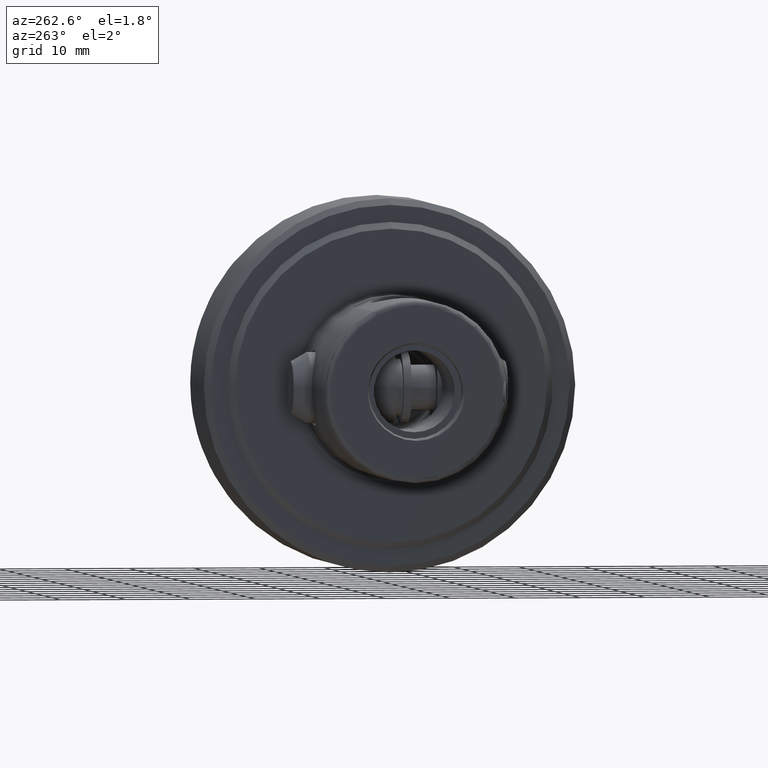
[diagram: clean part render]
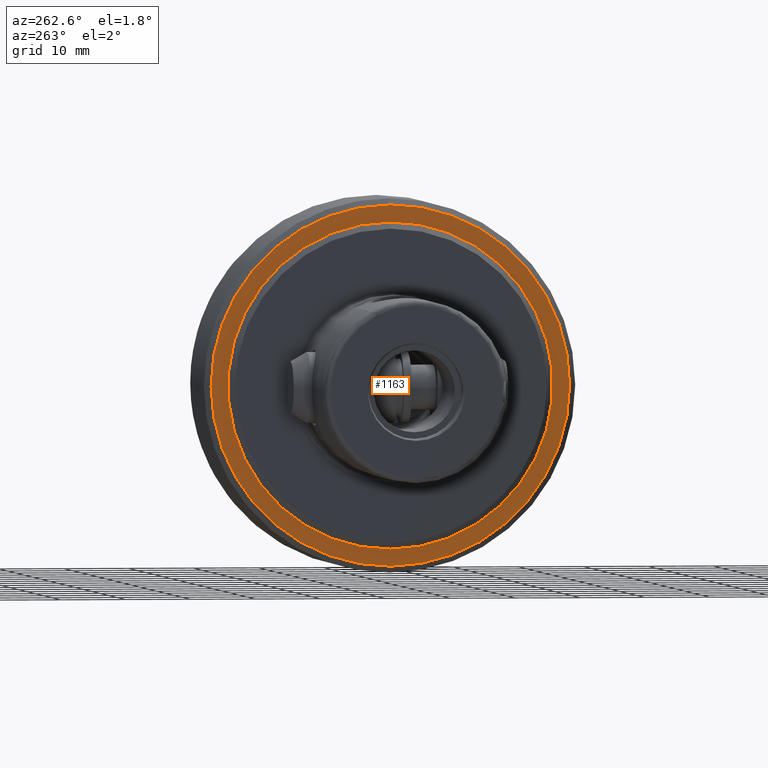
[diagram: same view with one face highlighted and labeled with its STEP entity id]
A machine part, auxiliary view. The second image highlights one B-rep face of the part: STEP entity #1163.
In plain terms, the highlighted planar face has unit normal (1, 0, 0).
Its self-contained STEP definition (entity closure, byte-faithful):
#161 = EDGE_LOOP ( 'NONE', ( #4857, #3424 ) ) ;
#274 = DIRECTION ( 'NONE',  ( 0.0000000000000000000, 0.0000000000000000000, -1.000000000000000000 ) ) ;
#392 = ORIENTED_EDGE ( 'NONE', *, *, #4791, .T. ) ;
#419 = CARTESIAN_POINT ( 'NONE',  ( 31.00000000000000000, 0.0000000000000000000, -27.59999999999998700 ) ) ;
#538 = AXIS2_PLACEMENT_3D ( 'NONE', #7177, #1692, #6025 ) ;
#754 = CARTESIAN_POINT ( 'NONE',  ( 31.00000000000000000, 3.441257505604061400E-015, 27.59999999999998700 ) ) ;
#871 = DIRECTION ( 'NONE',  ( 0.0000000000000000000, 0.0000000000000000000, -1.000000000000000000 ) ) ;
#1103 = PLANE ( 'NONE',  #538 ) ;
#1163 = ADVANCED_FACE ( 'NONE', ( #6189, #6083 ), #1103, .F. ) ;
#1524 = DIRECTION ( 'NONE',  ( 1.000000000000000000, 0.0000000000000000000, 0.0000000000000000000 ) ) ;
#1550 = AXIS2_PLACEMENT_3D ( 'NONE', #7520, #1524, #6297 ) ;
#1689 = CIRCLE ( 'NONE', #6919, 25.00000000000000000 ) ;
#1692 = DIRECTION ( 'NONE',  ( 1.000000000000000000, 0.0000000000000000000, 0.0000000000000000000 ) ) ;
#1940 = EDGE_LOOP ( 'NONE', ( #7342, #392 ) ) ;
#2387 = CARTESIAN_POINT ( 'NONE',  ( 31.00000000000000000, 0.0000000000000000000, 0.0000000000000000000 ) ) ;
#2585 = VERTEX_POINT ( 'NONE', #754 ) ;
#2607 = EDGE_CURVE ( 'NONE', #2585, #6926, #5608, .T. ) ;
#2663 = CARTESIAN_POINT ( 'NONE',  ( 31.00000000000000000, 0.0000000000000000000, 0.0000000000000000000 ) ) ;
#2709 = CARTESIAN_POINT ( 'NONE',  ( 31.00000000000000000, 0.0000000000000000000, 0.0000000000000000000 ) ) ;
#3092 = CARTESIAN_POINT ( 'NONE',  ( 31.00000000000000000, 0.0000000000000000000, -25.00000000000000000 ) ) ;
#3424 = ORIENTED_EDGE ( 'NONE', *, *, #2607, .T. ) ;
#3505 = EDGE_CURVE ( 'NONE', #3810, #7681, #1689, .T. ) ;
#3810 = VERTEX_POINT ( 'NONE', #3092 ) ;
#3941 = EDGE_CURVE ( 'NONE', #6926, #2585, #4056, .T. ) ;
#4024 = AXIS2_PLACEMENT_3D ( 'NONE', #2709, #4606, #871 ) ;
#4056 = CIRCLE ( 'NONE', #4723, 27.59999999999998700 ) ;
#4154 = DIRECTION ( 'NONE',  ( 1.000000000000000000, 0.0000000000000000000, 0.0000000000000000000 ) ) ;
#4606 = DIRECTION ( 'NONE',  ( -1.000000000000000000, -0.0000000000000000000, -0.0000000000000000000 ) ) ;
#4723 = AXIS2_PLACEMENT_3D ( 'NONE', #2663, #7561, #274 ) ;
#4791 = EDGE_CURVE ( 'NONE', #7681, #3810, #7651, .T. ) ;
#4857 = ORIENTED_EDGE ( 'NONE', *, *, #3941, .T. ) ;
#5608 = CIRCLE ( 'NONE', #4024, 27.59999999999998700 ) ;
#5840 = CARTESIAN_POINT ( 'NONE',  ( 31.00000000000000000, 3.061616997868383000E-015, 25.00000000000000000 ) ) ;
#6002 = DIRECTION ( 'NONE',  ( 0.0000000000000000000, 0.0000000000000000000, -1.000000000000000000 ) ) ;
#6025 = DIRECTION ( 'NONE',  ( 0.0000000000000000000, 0.0000000000000000000, -1.000000000000000000 ) ) ;
#6083 = FACE_BOUND ( 'NONE', #1940, .T. ) ;
#6189 = FACE_OUTER_BOUND ( 'NONE', #161, .T. ) ;
#6297 = DIRECTION ( 'NONE',  ( 0.0000000000000000000, 0.0000000000000000000, -1.000000000000000000 ) ) ;
#6919 = AXIS2_PLACEMENT_3D ( 'NONE', #2387, #4154, #6002 ) ;
#6926 = VERTEX_POINT ( 'NONE', #419 ) ;
#7177 = CARTESIAN_POINT ( 'NONE',  ( 31.00000000000000000, -4.457567127913452700E-015, 0.0000000000000000000 ) ) ;
#7342 = ORIENTED_EDGE ( 'NONE', *, *, #3505, .T. ) ;
#7520 = CARTESIAN_POINT ( 'NONE',  ( 31.00000000000000000, 0.0000000000000000000, 0.0000000000000000000 ) ) ;
#7561 = DIRECTION ( 'NONE',  ( -1.000000000000000000, -0.0000000000000000000, -0.0000000000000000000 ) ) ;
#7651 = CIRCLE ( 'NONE', #1550, 25.00000000000000000 ) ;
#7681 = VERTEX_POINT ( 'NONE', #5840 ) ;